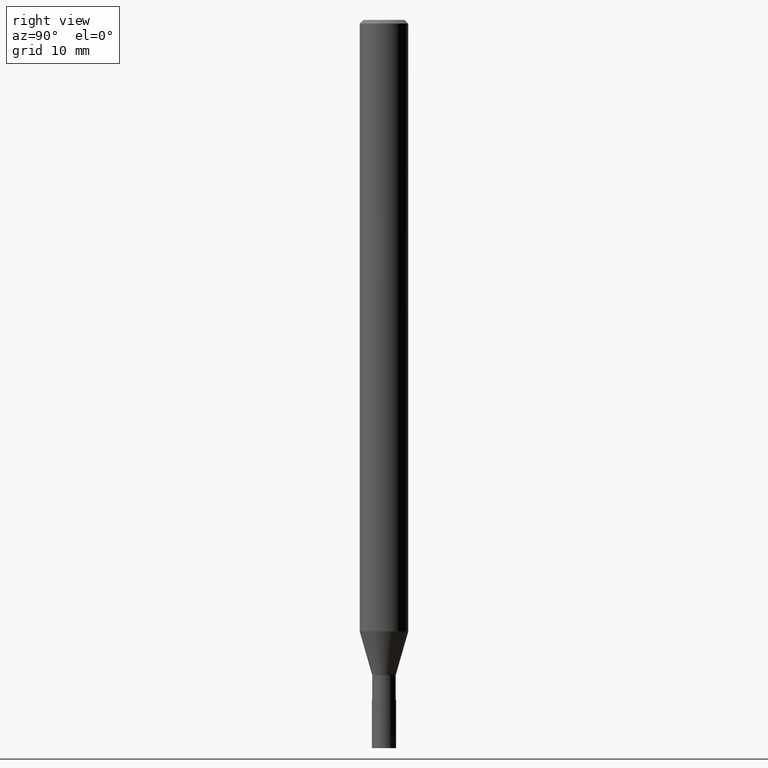
[diagram: clean part render]
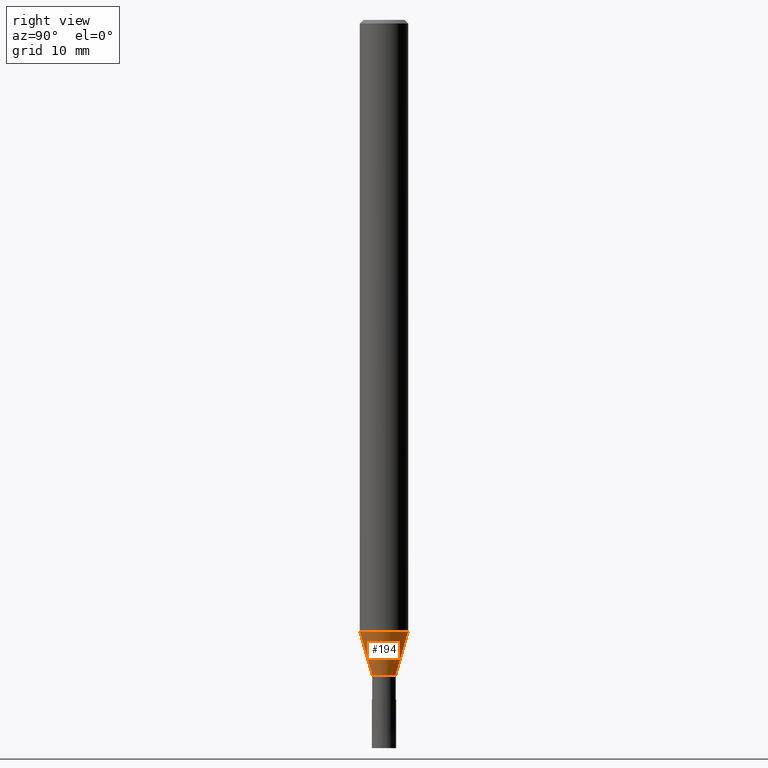
[diagram: same view with one face highlighted and labeled with its STEP entity id]
A machine part, right view. The second image highlights one B-rep face of the part: STEP entity #194.
In plain terms, the highlighted conical surface has half-angle 16.002 deg.
Its self-contained STEP definition (entity closure, byte-faithful):
#136=VERTEX_POINT('',#280);
#160=EDGE_CURVE('',#182,#136,#306,.T.);
#170=VERTEX_POINT('',#317);
#176=EDGE_CURVE('',#136,#198,#323,.T.);
#180=EDGE_CURVE('',#198,#170,#327,.T.);
#182=VERTEX_POINT('',#329);
#192=EDGE_CURVE('',#182,#170,#340,.T.);
#194=ADVANCED_FACE('',(#342),#343,.T.);
#198=VERTEX_POINT('',#348);
#280=CARTESIAN_POINT('',(0.0,0.96495,-54.0));
#306=LINE('',#471,#472);
#317=CARTESIAN_POINT('',(2.44915147732706E-016,-1.99995,-50.391));
#323=CIRCLE('',#496,0.96495);
#327=LINE('',#500,#501);
#329=CARTESIAN_POINT('',(0.0,1.99995,-50.391));
#340=CIRCLE('',#517,1.99995);
#342=FACE_OUTER_BOUND('',#519,.T.);
#343=CONICAL_SURFACE('',#520,1.48245,0.27928747560841);
#348=CARTESIAN_POINT('',(1.1816839011209E-016,-0.96495,-54.0));
#471=CARTESIAN_POINT('',(-1.81541768922398E-016,1.48245,-52.1955));
#472=VECTOR('',#636,1.0);
#496=AXIS2_PLACEMENT_3D('',#651,#652,#653);
#500=CARTESIAN_POINT('',(1.81541768922398E-016,-1.48245,-52.1955));
#501=VECTOR('',#655,1.0);
#517=AXIS2_PLACEMENT_3D('',#665,#666,#667);
#519=EDGE_LOOP('',(#669,#670,#671,#672));
#520=AXIS2_PLACEMENT_3D('',#673,#674,#675);
#636=DIRECTION('',(3.37588216952574E-017,-0.275670803028954,-0.961252104474873));
#651=CARTESIAN_POINT('',(0.0,0.0,-54.0));
#652=DIRECTION('',(0.0,0.0,-1.0));
#653=DIRECTION('',(0.0,1.0,0.0));
#655=DIRECTION('',(3.37588216952574E-017,-0.275670803028954,0.961252104474873));
#665=CARTESIAN_POINT('',(0.0,0.0,-50.391));
#666=DIRECTION('',(0.0,0.0,-1.0));
#667=DIRECTION('',(0.0,1.0,0.0));
#669=ORIENTED_EDGE('',*,*,#160,.F.);
#670=ORIENTED_EDGE('',*,*,#192,.T.);
#671=ORIENTED_EDGE('',*,*,#180,.F.);
#672=ORIENTED_EDGE('',*,*,#176,.F.);
#673=CARTESIAN_POINT('',(0.0,0.0,-52.1955));
#674=DIRECTION('',(-0.0,-0.0,1.0));
#675=DIRECTION('',(0.0,1.0,0.0));